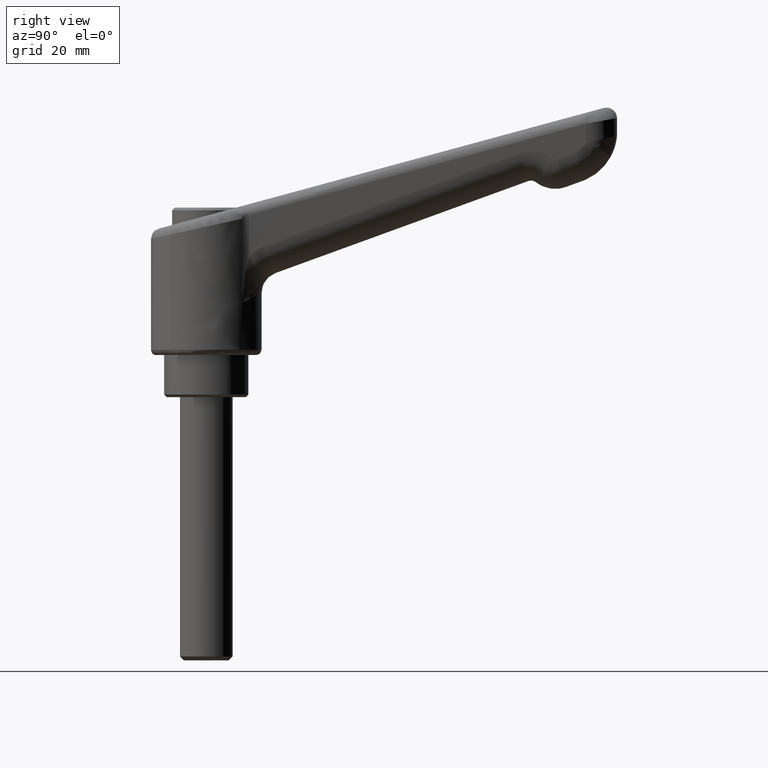
[diagram: clean part render]
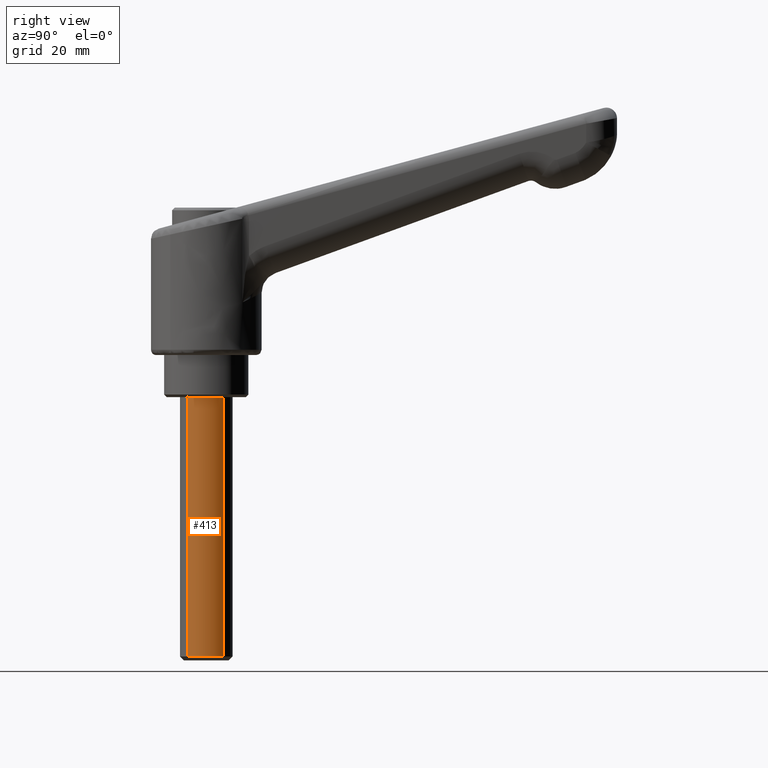
[diagram: same view with one face highlighted and labeled with its STEP entity id]
A machine part, right view. The second image highlights one B-rep face of the part: STEP entity #413.
In plain terms, the highlighted face is a freeform B-spline surface patch.
Its self-contained STEP definition (entity closure, byte-faithful):
#128=CARTESIAN_POINT('',(3.228710400506260,-3.817778493291105,-57.250000000000583));
#129=VERTEX_POINT('',#128);
#137=CARTESIAN_POINT('',(0.000001409229663,-4.999999999999801,-57.250000000000000));
#138=VERTEX_POINT('',#137);
#139=CARTESIAN_POINT('',(0.000001409229663,-4.999999999999801,-57.250000000000000));
#140=CARTESIAN_POINT('',(0.402195083494488,-5.000090212560594,-57.250000000000043));
#141=CARTESIAN_POINT('',(1.169954009261771,-4.906864755796320,-57.250000000000192));
#142=CARTESIAN_POINT('',(2.275250326691947,-4.502164194821467,-57.250000000000341));
#143=CARTESIAN_POINT('',(2.921666119839228,-4.077551981063949,-57.250000000000782));
#144=CARTESIAN_POINT('',(3.228710400506260,-3.817778493291105,-57.250000000000583));
#145=B_SPLINE_CURVE_WITH_KNOTS('',3,(#139,#140,#141,#142,#143,#144),.UNSPECIFIED.,.F.,.U.,(4,1,1,4),(0.000000022733512,1.206560607857699,2.303429221639196,3.509989806758445),.UNSPECIFIED.);
#146=EDGE_CURVE('',#138,#129,#145,.T.);
#148=CARTESIAN_POINT('',(-3.626871556411922,-3.441772682070122,-57.249999999999822));
#149=VERTEX_POINT('',#148);
#150=CARTESIAN_POINT('',(-3.626871556411922,-3.441772682070122,-57.249999999999822));
#151=CARTESIAN_POINT('',(-3.408671374200890,-3.671756130265191,-57.249999999999787));
#152=CARTESIAN_POINT('',(-2.912308253509662,-4.103949882787862,-57.249999999999957));
#153=CARTESIAN_POINT('',(-2.008947954982103,-4.621185044869841,-57.249999999999737));
#154=CARTESIAN_POINT('',(-1.014461721640478,-4.933475265569170,-57.250000000000092));
#155=CARTESIAN_POINT('',(-0.317021730220617,-5.000031831832930,-57.249999999999957));
#156=CARTESIAN_POINT('',(0.000001409229663,-4.999999999999801,-57.250000000000000));
#157=B_SPLINE_CURVE_WITH_KNOTS('',3,(#150,#151,#152,#153,#154,#155,#156),.UNSPECIFIED.,.F.,.U.,(4,1,1,1,4),(0.000000031836549,0.951073800489040,1.965571810872906,3.106845132718167,4.057918901392986),.UNSPECIFIED.);
#158=EDGE_CURVE('',#149,#138,#157,.T.);
#302=CARTESIAN_POINT('',(-3.626871556915247,-3.441772681539728,-7.999999999999787));
#303=VERTEX_POINT('',#302);
#304=CARTESIAN_POINT('',(-3.626871556411922,-3.441772682070122,-57.249999999999822));
#305=CARTESIAN_POINT('',(-3.626871556915247,-3.441772681539728,-7.999999999999787));
#306=QUASI_UNIFORM_CURVE('',1,(#304,#305),.UNSPECIFIED.,.F.,.U.);
#307=EDGE_CURVE('',#149,#303,#306,.T.);
#352=CARTESIAN_POINT('',(3.228710400698303,-3.817778493128693,-7.999999999999788));
#353=VERTEX_POINT('',#352);
#364=CARTESIAN_POINT('',(3.228710400506260,-3.817778493291105,-57.250000000000583));
#365=CARTESIAN_POINT('',(3.228710400698303,-3.817778493128693,-7.999999999999788));
#366=QUASI_UNIFORM_CURVE('',1,(#364,#365),.UNSPECIFIED.,.F.,.U.);
#367=EDGE_CURVE('',#129,#353,#366,.T.);
#372=CARTESIAN_POINT('',(-3.626871855061437,-3.441772878468769,-58.481250000000003));
#373=CARTESIAN_POINT('',(-0.376621797922258,-6.866821790875346,-58.481249999999989));
#374=CARTESIAN_POINT('',(3.228710191910127,-3.817778214702324,-58.481250000000010));
#375=CARTESIAN_POINT('',(-3.626871855061437,-3.441772878468769,-6.737968749999779));
#376=CARTESIAN_POINT('',(-0.376621797922258,-6.866821790875346,-6.737968749999779));
#377=CARTESIAN_POINT('',(3.228710191910127,-3.817778214702324,-6.737968749999781));
#385=(BOUNDED_SURFACE()B_SPLINE_SURFACE(2,1,((#372,#375),(#373,#376),(#374,#377)),.UNSPECIFIED.,.F.,.F.,.U.)B_SPLINE_SURFACE_WITH_KNOTS((3,3),(2,2),(0.0,7.950717793543950),(0.0,51.743281250000223),.UNSPECIFIED.)GEOMETRIC_REPRESENTATION_ITEM()RATIONAL_B_SPLINE_SURFACE(((1.0,1.0),(0.718822509939086,0.718822509939086),(0.977505800795127,0.977505800795127)))REPRESENTATION_ITEM('')SURFACE());
#386=ORIENTED_EDGE('',*,*,#146,.T.);
#387=ORIENTED_EDGE('',*,*,#367,.T.);
#388=CARTESIAN_POINT('',(0.000001409229663,-4.999999999999801,-7.999999999999789));
#389=VERTEX_POINT('',#388);
#390=CARTESIAN_POINT('',(0.000001409229663,-4.999999999999801,-7.999999999999789));
#391=CARTESIAN_POINT('',(0.511923668312003,-5.000281491613778,-7.999999999999791));
#392=CARTESIAN_POINT('',(1.224696608564566,-4.889508376925975,-7.999999999999777));
#393=CARTESIAN_POINT('',(2.318609944575470,-4.468431522444345,-7.999999999999815));
#394=CARTESIAN_POINT('',(2.879827266320656,-4.113034836133421,-7.999999999999758));
#395=CARTESIAN_POINT('',(3.228710400698303,-3.817778493128693,-7.999999999999788));
#396=B_SPLINE_CURVE_WITH_KNOTS('',3,(#390,#391,#392,#393,#394,#395),.UNSPECIFIED.,.F.,.U.,(4,1,1,4),(0.000000022733709,1.535633670613452,2.138894439747834,3.509989807009962),.UNSPECIFIED.);
#397=EDGE_CURVE('',#389,#353,#396,.T.);
#398=ORIENTED_EDGE('',*,*,#397,.F.);
#399=CARTESIAN_POINT('',(-3.626871556915247,-3.441772681539728,-7.999999999999787));
#400=CARTESIAN_POINT('',(-3.408670453429426,-3.671755835618213,-7.999999999999785));
#401=CARTESIAN_POINT('',(-2.912313639643506,-4.103964484458954,-7.999999999999803));
#402=CARTESIAN_POINT('',(-2.174857943844476,-4.526116664829383,-7.999999999999756));
#403=CARTESIAN_POINT('',(-1.204556519414753,-4.892919536144229,-7.999999999999820));
#404=CARTESIAN_POINT('',(-0.507282712484764,-5.000276989406550,-7.999999999999774));
#405=CARTESIAN_POINT('',(0.000001409229663,-4.999999999999801,-7.999999999999789));
#406=B_SPLINE_CURVE_WITH_KNOTS('',3,(#399,#400,#401,#402,#403,#404,#405),.UNSPECIFIED.,.F.,.U.,(4,1,1,1,4),(0.000000031836436,0.951073800660301,1.965571811227012,2.536188465805791,4.057918902124206),.UNSPECIFIED.);
#407=EDGE_CURVE('',#303,#389,#406,.T.);
#408=ORIENTED_EDGE('',*,*,#407,.F.);
#409=ORIENTED_EDGE('',*,*,#307,.F.);
#410=ORIENTED_EDGE('',*,*,#158,.T.);
#411=EDGE_LOOP('',(#386,#387,#398,#408,#409,#410));
#412=FACE_OUTER_BOUND('',#411,.T.);
#413=ADVANCED_FACE('',(#412),#385,.T.);